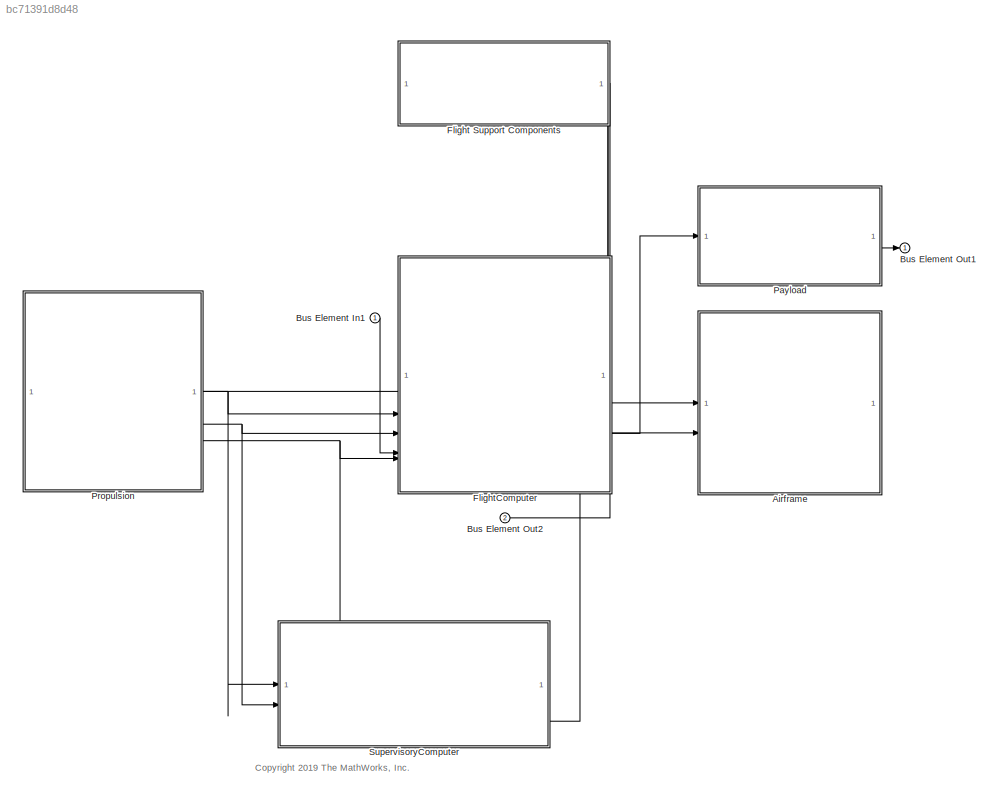
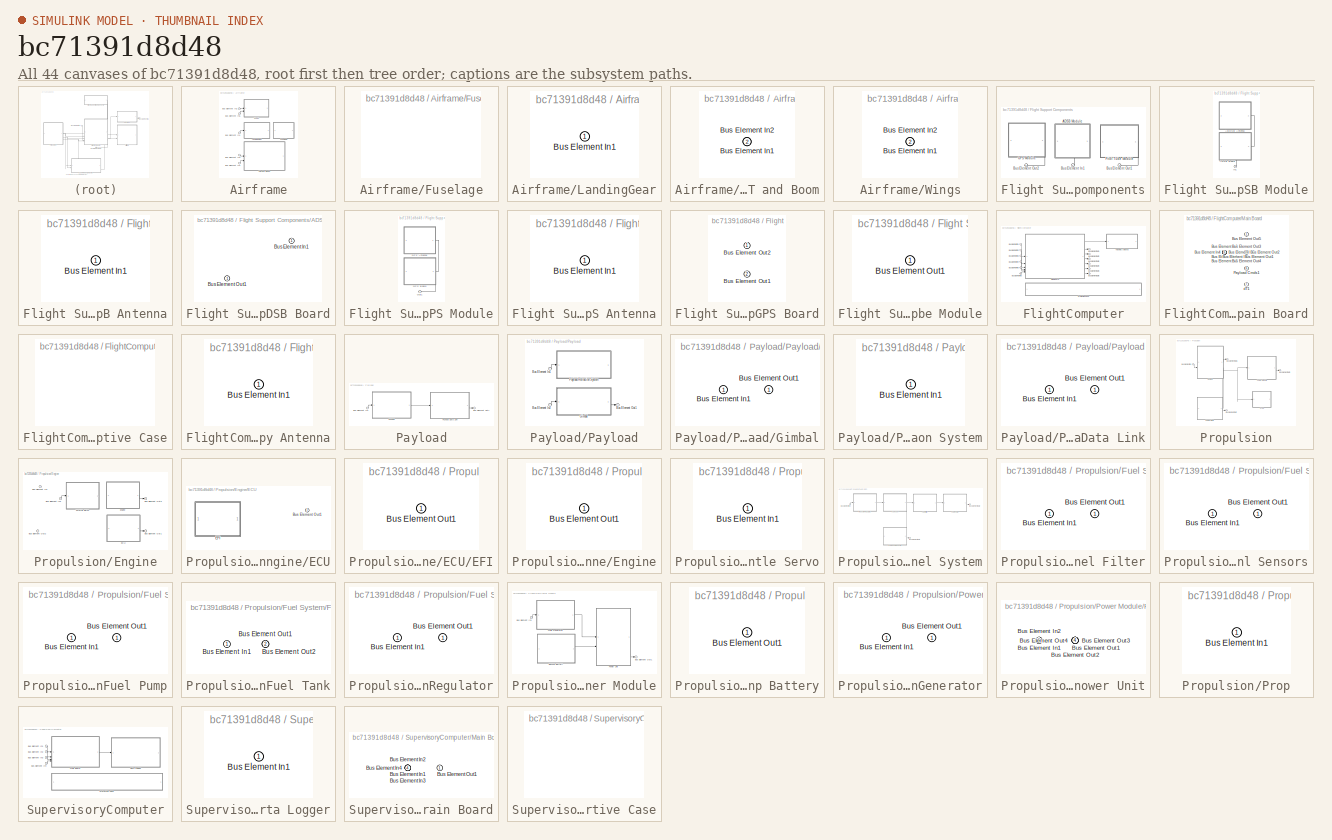
[diagram: thumbnail index - all 44 canvases of the model, root first then tree order]
MODEL slx_bc71391d8d48
KIND model
CONFIG AbsTol = auto
CONFIG EnableMultiTasking = off
CONFIG FixedStep = auto
CONFIG MaxStep = auto
CONFIG MinStep = auto
CONFIG RelTol = 1e-3
CONFIG SampleTimeConstraint = Unconstrained
CONFIG SolverName = VariableStepAuto
CONFIG StartTime = 0.0
CONFIG StopTime = 10.0
WORKSPACE source: mxarray member
WORKSPACE Var = 0
WORKSPACE architecture_gsCommands: Simulink.Bus (value not decoded)
WORKSPACE ctrlSrfcDeflection: Simulink.Bus (value not decoded)
WORKSPACE gs_commands_bus: Simulink.Bus (value not decoded)
WORKSPACE lightCmds: Simulink.Bus (value not decoded)
WORKSPACE mission_item_bus: Simulink.Bus (value not decoded)
WORKSPACE operatorCmds: Simulink.Bus (value not decoded)
WORKSPACE param_value_bus: Simulink.Bus (value not decoded)
BLOCK [SubSystem] Airframe
  PortSchema = {"entries":[{"content":{"headerSize":26,"margin":15,"minimumSpacing":25,"sides":[{"content":{"connectorIds":["In1","In2"]},"type":"ConnectorPlacement.EquallySpacedRectSide","uuid":"410c5b0f-08b5-48c1-aeab-ad32707f18cb"},{"content":{"connectorIds":[],"side":"RIGHT"},"type":"ConnectorPlacement.EquallySpacedRectSide","uuid":"175f376c-06cb-43d8-93cf-cfe74288c6ca"},{"content":{"connectorIds":[],"side":...<+295ch>  <repeated x3 — deduplicated; at blocks: Airframe, Tail and Boom, Wings>
BLOCK [Inport] Airframe/Bus Element In1
BLOCK [Inport] Airframe/Bus Element In2
  Port = 2
BLOCK [Inport] Airframe/Bus Element In3
  Port = 2
BLOCK [Inport] Airframe/Bus Element In4
BLOCK [Inport] Airframe/Bus Element In5
BLOCK [SubSystem] Airframe/Fuselage
  PortSchema = {"entries":[{"content":{"headerSize":26,"margin":15,"minimumSpacing":25,"sides":[{"content":{"connectorIds":[]},"type":"ConnectorPlacement.EquallySpacedRectSide","uuid":"1d3f3a23-636b-441d-85a6-b75e05b18389"},{"content":{"connectorIds":[],"side":"RIGHT"},"type":"ConnectorPlacement.EquallySpacedRectSide","uuid":"e22d7e46-f58c-4c9d-8892-998381cd60e3"},{"content":{"connectorIds":[],"side":"TOP"},"typ...<+284ch>  <repeated x3 — deduplicated; at blocks: Fuselage, Protective Case>
BLOCK [SubSystem] Airframe/LandingGear
  PortSchema = {"entries":[{"content":{"headerSize":26,"margin":15,"minimumSpacing":25,"sides":[{"content":{"connectorIds":["In1"]},"type":"ConnectorPlacement.EquallySpacedRectSide","uuid":"410c5b0f-08b5-48c1-aeab-ad32707f18cb"},{"content":{"connectorIds":[],"side":"RIGHT"},"type":"ConnectorPlacement.EquallySpacedRectSide","uuid":"175f376c-06cb-43d8-93cf-cfe74288c6ca"},{"content":{"connectorIds":[],"side":"TOP"}...<+289ch>  <repeated x5 — deduplicated; at blocks: LandingGear, Payload Retraction System, Throttle Servo, Prop, Data Logger>
BLOCK [Inport] Airframe/LandingGear/Bus Element In1
BLOCK [SubSystem] Airframe/Tail and Boom
BLOCK [Inport] Airframe/Tail and Boom/Bus Element In1
BLOCK [Inport] Airframe/Tail and Boom/Bus Element In2
  Port = 2
BLOCK [SubSystem] Airframe/Wings
BLOCK [Inport] Airframe/Wings/Bus Element In1
BLOCK [Inport] Airframe/Wings/Bus Element In2
  Port = 2
BLOCK [Inport] Bus Element In1
BLOCK [Outport] Bus Element Out1
  VectorParamsAs1DForOutWhenUnconnected = off
BLOCK [Outport] Bus Element Out2
  Port = 2
  VectorParamsAs1DForOutWhenUnconnected = off
BLOCK [SubSystem] Flight Support Components
  PortSchema = {"entries":[{"content":{"headerSize":26,"margin":15,"minimumSpacing":25,"sides":[{"content":{"connectorIds":[]},"type":"ConnectorPlacement.EquallySpacedRectSide","uuid":"410c5b0f-08b5-48c1-aeab-ad32707f18cb"},{"content":{"connectorIds":[],"side":"RIGHT"},"type":"ConnectorPlacement.EquallySpacedRectSide","uuid":"175f376c-06cb-43d8-93cf-cfe74288c6ca"},{"content":{"connectorIds":[],"side":"TOP"},"typ...<+447ch>
BLOCK [SubSystem] Flight Support Components/ADSB Module
  PortSchema = {"entries":[{"content":{"headerSize":26,"margin":15,"minimumSpacing":25,"sides":[{"content":{"connectorIds":[]},"type":"ConnectorPlacement.EquallySpacedRectSide","uuid":"d72055ff-278e-465f-ba3e-c6c3db7bfef8"},{"content":{"connectorIds":[],"side":"RIGHT"},"type":"ConnectorPlacement.EquallySpacedRectSide","uuid":"8524ed89-5b6f-4252-b4a0-99bfa4432df7"},{"content":{"connectorIds":[],"side":"TOP"},"typ...<+433ch>
BLOCK [SubSystem] Flight Support Components/ADSB Module/ABDSB Antenna
  PortSchema = {"entries":[{"content":{"headerSize":26,"margin":15,"minimumSpacing":25,"sides":[{"content":{"connectorIds":[]},"type":"ConnectorPlacement.EquallySpacedRectSide","uuid":"1d3f3a23-636b-441d-85a6-b75e05b18389"},{"content":{"connectorIds":["In1"],"side":"RIGHT"},"type":"ConnectorPlacement.EquallySpacedRectSide","uuid":"e22d7e46-f58c-4c9d-8892-998381cd60e3"},{"content":{"connectorIds":[],"side":"TOP"}...<+289ch>
BLOCK [Inport] Flight Support Components/ADSB Module/ABDSB Antenna/Bus Element In1
BLOCK [SubSystem] Flight Support Components/ADSB Module/ADSB Board
  PortSchema = {"entries":[{"content":{"headerSize":26,"margin":15,"minimumSpacing":25,"sides":[{"content":{"connectorIds":[]},"type":"ConnectorPlacement.EquallySpacedRectSide","uuid":"410c5b0f-08b5-48c1-aeab-ad32707f18cb"},{"content":{"connectorIds":["Out1"],"side":"RIGHT"},"type":"ConnectorPlacement.EquallySpacedRectSide","uuid":"175f376c-06cb-43d8-93cf-cfe74288c6ca"},{"content":{"connectorIds":[],"side":"TOP"...<+439ch>
BLOCK [Inport] Flight Support Components/ADSB Module/ADSB Board/Bus Element In1
BLOCK [Outport] Flight Support Components/ADSB Module/ADSB Board/Bus Element Out1
  VectorParamsAs1DForOutWhenUnconnected = off
BLOCK [Inport] Flight Support Components/ADSB Module/In1
BLOCK [Inport] Flight Support Components/Bus Element In1
BLOCK [Outport] Flight Support Components/Bus Element Out1
  VectorParamsAs1DForOutWhenUnconnected = off
BLOCK [Outport] Flight Support Components/Bus Element Out2
  Port = 2
  VectorParamsAs1DForOutWhenUnconnected = off
BLOCK [SubSystem] Flight Support Components/GPS Module
  PortSchema = {"entries":[{"content":{"headerSize":26,"margin":15,"minimumSpacing":25,"sides":[{"content":{"connectorIds":[]},"type":"ConnectorPlacement.EquallySpacedRectSide","uuid":"9f35dc00-989c-4612-aee9-27ffd041f5d2"},{"content":{"connectorIds":[],"side":"RIGHT"},"type":"ConnectorPlacement.EquallySpacedRectSide","uuid":"fc636a36-c80d-4d26-be49-cb148246bb8f"},{"content":{"connectorIds":[],"side":"TOP"},"typ...<+434ch>
BLOCK [SubSystem] Flight Support Components/GPS Module/GPS Antenna
  PortSchema = {"entries":[{"content":{"headerSize":26,"margin":15,"minimumSpacing":25,"sides":[{"content":{"connectorIds":[]},"type":"ConnectorPlacement.EquallySpacedRectSide","uuid":"1d3f3a23-636b-441d-85a6-b75e05b18389"},{"content":{"connectorIds":["In1"],"side":"RIGHT"},"type":"ConnectorPlacement.EquallySpacedRectSide","uuid":"e22d7e46-f58c-4c9d-8892-998381cd60e3"},{"content":{"connectorIds":[],"side":"TOP"}...<+289ch>
BLOCK [Inport] Flight Support Components/GPS Module/GPS Antenna/Bus Element In1
BLOCK [SubSystem] Flight Support Components/GPS Module/GPS Board
  PortSchema = {"entries":[{"content":{"headerSize":26,"margin":15,"minimumSpacing":25,"sides":[{"content":{"connectorIds":[]},"type":"ConnectorPlacement.EquallySpacedRectSide","uuid":"288187f8-f80a-4535-8eff-6998f4e932c0"},{"content":{"connectorIds":["Out1"],"side":"RIGHT"},"type":"ConnectorPlacement.EquallySpacedRectSide","uuid":"d1e22774-cdd2-4e71-94b1-3e938d9d16f6"},{"content":{"connectorIds":[],"side":"TOP"...<+440ch>
BLOCK [Outport] Flight Support Components/GPS Module/GPS Board/Bus Element Out1
  Port = 2
  VectorParamsAs1DForOutWhenUnconnected = off
BLOCK [Outport] Flight Support Components/GPS Module/GPS Board/Bus Element Out2
  VectorParamsAs1DForOutWhenUnconnected = off
BLOCK [Outport] Flight Support Components/GPS Module/Out1
  VectorParamsAs1DForOutWhenUnconnected = off
BLOCK [SubSystem] Flight Support Components/Pitot Tube Module
  PortSchema = {"entries":[{"content":{"headerSize":26,"margin":15,"minimumSpacing":25,"sides":[{"content":{"connectorIds":[]},"type":"ConnectorPlacement.EquallySpacedRectSide","uuid":"288187f8-f80a-4535-8eff-6998f4e932c0"},{"content":{"connectorIds":[],"side":"RIGHT"},"type":"ConnectorPlacement.EquallySpacedRectSide","uuid":"d1e22774-cdd2-4e71-94b1-3e938d9d16f6"},{"content":{"connectorIds":[],"side":"TOP"},"typ...<+434ch>
BLOCK [Outport] Flight Support Components/Pitot Tube Module/Bus Element Out1
  VectorParamsAs1DForOutWhenUnconnected = off
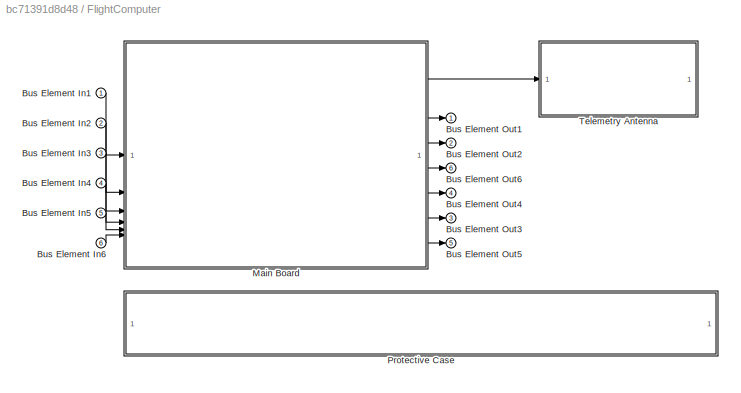
BLOCK [SubSystem] FlightComputer
  PortSchema = {"entries":[{"content":{"headerSize":26,"margin":15,"minimumSpacing":25,"sides":[{"content":{"connectorIds":["In5","Out5","In2","In3","In6"]},"type":"ConnectorPlacement.EquallySpacedRectSide","uuid":"288187f8-f80a-4535-8eff-6998f4e932c0"},{"content":{"connectorIds":["Out3","Out2","Out6"],"side":"RIGHT"},"type":"ConnectorPlacement.EquallySpacedRectSide","uuid":"d1e22774-cdd2-4e71-94b1-3e938d9d16f6"...<+502ch>
BLOCK [Inport] FlightComputer/Bus Element In1
BLOCK [Inport] FlightComputer/Bus Element In2
  Port = 2
BLOCK [Inport] FlightComputer/Bus Element In3
  Port = 3
BLOCK [Inport] FlightComputer/Bus Element In4
  Port = 4
BLOCK [Inport] FlightComputer/Bus Element In5
  Port = 5
BLOCK [Inport] FlightComputer/Bus Element In6
  Port = 6
BLOCK [Outport] FlightComputer/Bus Element Out1
  VectorParamsAs1DForOutWhenUnconnected = off
BLOCK [Outport] FlightComputer/Bus Element Out2
  Port = 2
  VectorParamsAs1DForOutWhenUnconnected = off
BLOCK [Outport] FlightComputer/Bus Element Out3
  Port = 3
  VectorParamsAs1DForOutWhenUnconnected = off
BLOCK [Outport] FlightComputer/Bus Element Out4
  Port = 4
  VectorParamsAs1DForOutWhenUnconnected = off
BLOCK [Outport] FlightComputer/Bus Element Out5
  Port = 5
  VectorParamsAs1DForOutWhenUnconnected = off
BLOCK [Outport] FlightComputer/Bus Element Out6
  Port = 6
  VectorParamsAs1DForOutWhenUnconnected = off
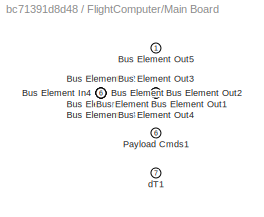
BLOCK [SubSystem] FlightComputer/Main Board
  PortSchema = {"entries":[{"content":{"headerSize":26,"margin":15,"minimumSpacing":25,"sides":[{"content":{"connectorIds":["In1","In2","In3","In4","In5","In6"]},"type":"ConnectorPlacement.EquallySpacedRectSide","uuid":"288187f8-f80a-4535-8eff-6998f4e932c0"},{"content":{"connectorIds":["Out1","Out2","Out3","Out4","Out5","Out6","Out7"],"side":"RIGHT"},"type":"ConnectorPlacement.EquallySpacedRectSide","uuid":"d1e2...<+367ch>
BLOCK [Inport] FlightComputer/Main Board/Bus Element In1
BLOCK [Inport] FlightComputer/Main Board/Bus Element In2
  Port = 2
BLOCK [Inport] FlightComputer/Main Board/Bus Element In3
  Port = 3
BLOCK [Inport] FlightComputer/Main Board/Bus Element In4
  Port = 4
BLOCK [Inport] FlightComputer/Main Board/Bus Element In5
  Port = 5
BLOCK [Inport] FlightComputer/Main Board/Bus Element In6
  Port = 6
BLOCK [Outport] FlightComputer/Main Board/Bus Element Out1
  Port = 2
  VectorParamsAs1DForOutWhenUnconnected = off
BLOCK [Outport] FlightComputer/Main Board/Bus Element Out2
  Port = 3
  VectorParamsAs1DForOutWhenUnconnected = off
BLOCK [Outport] FlightComputer/Main Board/Bus Element Out3
  Port = 4
  VectorParamsAs1DForOutWhenUnconnected = off
BLOCK [Outport] FlightComputer/Main Board/Bus Element Out4
  Port = 5
  VectorParamsAs1DForOutWhenUnconnected = off
BLOCK [Outport] FlightComputer/Main Board/Bus Element Out5
  VectorParamsAs1DForOutWhenUnconnected = off
BLOCK [Outport] FlightComputer/Main Board/Payload Cmds1
  Port = 6
  VectorParamsAs1DForOutWhenUnconnected = off
BLOCK [Outport] FlightComputer/Main Board/dT1
  Port = 7
  VectorParamsAs1DForOutWhenUnconnected = off
BLOCK [SubSystem] FlightComputer/Protective Case
BLOCK [SubSystem] FlightComputer/Telemetry Antenna
  PortSchema = {"entries":[{"content":{"headerSize":26,"margin":15,"minimumSpacing":25,"sides":[{"content":{"connectorIds":["In1"]},"type":"ConnectorPlacement.EquallySpacedRectSide","uuid":"1d3f3a23-636b-441d-85a6-b75e05b18389"},{"content":{"connectorIds":[],"side":"RIGHT"},"type":"ConnectorPlacement.EquallySpacedRectSide","uuid":"e22d7e46-f58c-4c9d-8892-998381cd60e3"},{"content":{"connectorIds":[],"side":"TOP"}...<+289ch>
BLOCK [Inport] FlightComputer/Telemetry Antenna/Bus Element In1
BLOCK [SubSystem] Payload
  PortSchema = {"entries":[{"content":{"headerSize":26,"margin":15,"minimumSpacing":25,"sides":[{"content":{"connectorIds":["In1"]},"type":"ConnectorPlacement.EquallySpacedRectSide","uuid":"288187f8-f80a-4535-8eff-6998f4e932c0"},{"content":{"connectorIds":["Out1"],"side":"RIGHT"},"type":"ConnectorPlacement.EquallySpacedRectSide","uuid":"d1e22774-cdd2-4e71-94b1-3e938d9d16f6"},{"content":{"connectorIds":[],"side":...<+295ch>  <repeated x6 — deduplicated; at blocks: Payload, Payload Data Link, Fuel Pump, Pressure Regulator, Main Generator>
BLOCK [Inport] Payload/Bus Element In1
BLOCK [Outport] Payload/Bus Element Out1
  VectorParamsAs1DForOutWhenUnconnected = off
BLOCK [SubSystem] Payload/Payload
BLOCK [SubSystem] Payload/Payload Data Link
BLOCK [Inport] Payload/Payload Data Link/Bus Element In1
BLOCK [Outport] Payload/Payload Data Link/Bus Element Out1
  VectorParamsAs1DForOutWhenUnconnected = off
BLOCK [Inport] Payload/Payload/Bus Element In1
BLOCK [Inport] Payload/Payload/Bus Element In2
BLOCK [Outport] Payload/Payload/Bus Element Out1
  VectorParamsAs1DForOutWhenUnconnected = off
BLOCK [SubSystem] Payload/Payload/Gimbal
  PortSchema = {"entries":[{"content":{"headerSize":26,"margin":15,"minimumSpacing":25,"sides":[{"content":{"connectorIds":["In1"]},"type":"ConnectorPlacement.EquallySpacedRectSide","uuid":"410c5b0f-08b5-48c1-aeab-ad32707f18cb"},{"content":{"connectorIds":["Out1"],"side":"RIGHT"},"type":"ConnectorPlacement.EquallySpacedRectSide","uuid":"175f376c-06cb-43d8-93cf-cfe74288c6ca"},{"content":{"connectorIds":[],"side":...<+295ch>  <repeated x3 — deduplicated; at blocks: Gimbal, Fuel Filter, Power Module>
BLOCK [Inport] Payload/Payload/Gimbal/Bus Element In1
BLOCK [Outport] Payload/Payload/Gimbal/Bus Element Out1
  VectorParamsAs1DForOutWhenUnconnected = off
BLOCK [SubSystem] Payload/Payload/Payload Retraction System
BLOCK [Inport] Payload/Payload/Payload Retraction System/Bus Element In1
BLOCK [SubSystem] Propulsion
  PortSchema = {"entries":[{"content":{"headerSize":26,"margin":15,"minimumSpacing":25,"sides":[{"content":{"connectorIds":[]},"type":"ConnectorPlacement.EquallySpacedRectSide","uuid":"288187f8-f80a-4535-8eff-6998f4e932c0"},{"content":{"connectorIds":["In1","Out1","Out2","Out3"],"side":"RIGHT"},"type":"ConnectorPlacement.EquallySpacedRectSide","uuid":"d1e22774-cdd2-4e71-94b1-3e938d9d16f6"},{"content":{"connector...<+310ch>
BLOCK [Inport] Propulsion/Bus Element In1
BLOCK [Outport] Propulsion/Bus Element Out1
  VectorParamsAs1DForOutWhenUnconnected = off
BLOCK [Outport] Propulsion/Bus Element Out2
  Port = 2
  VectorParamsAs1DForOutWhenUnconnected = off
BLOCK [Outport] Propulsion/Bus Element Out3
  Port = 3
  VectorParamsAs1DForOutWhenUnconnected = off
BLOCK [SubSystem] Propulsion/Engine
  PortSchema = {"entries":[{"content":{"headerSize":26,"margin":15,"minimumSpacing":25,"sides":[{"content":{"connectorIds":["In2"]},"type":"ConnectorPlacement.EquallySpacedRectSide","uuid":"288187f8-f80a-4535-8eff-6998f4e932c0"},{"content":{"connectorIds":["Out1","Out3"],"side":"RIGHT"},"type":"ConnectorPlacement.EquallySpacedRectSide","uuid":"d1e22774-cdd2-4e71-94b1-3e938d9d16f6"},{"content":{"connectorIds":[],...<+458ch>
BLOCK [Inport] Propulsion/Engine/Bus Element In1
BLOCK [Inport] Propulsion/Engine/Bus Element In2
  Port = 2
BLOCK [Outport] Propulsion/Engine/Bus Element Out1
  VectorParamsAs1DForOutWhenUnconnected = off
BLOCK [Outport] Propulsion/Engine/Bus Element Out2
  Port = 2
  VectorParamsAs1DForOutWhenUnconnected = off
BLOCK [Outport] Propulsion/Engine/Bus Element Out3
  Port = 3
  VectorParamsAs1DForOutWhenUnconnected = off
BLOCK [SubSystem] Propulsion/Engine/ECU
  PortSchema = {"entries":[{"content":{"headerSize":26,"margin":15,"minimumSpacing":25,"sides":[{"content":{"connectorIds":[]},"type":"ConnectorPlacement.EquallySpacedRectSide","uuid":"288187f8-f80a-4535-8eff-6998f4e932c0"},{"content":{"connectorIds":["Out1"],"side":"RIGHT"},"type":"ConnectorPlacement.EquallySpacedRectSide","uuid":"d1e22774-cdd2-4e71-94b1-3e938d9d16f6"},{"content":{"connectorIds":[],"side":"TOP"...<+290ch>  <repeated x4 — deduplicated; at blocks: ECU, EFI, Engine, Backup Battery>
BLOCK [Outport] Propulsion/Engine/ECU/Bus Element Out1
  VectorParamsAs1DForOutWhenUnconnected = off
BLOCK [SubSystem] Propulsion/Engine/ECU/EFI
BLOCK [Outport] Propulsion/Engine/ECU/EFI/Bus Element Out1
  VectorParamsAs1DForOutWhenUnconnected = off
BLOCK [SubSystem] Propulsion/Engine/Engine
BLOCK [Outport] Propulsion/Engine/Engine/Bus Element Out1
  VectorParamsAs1DForOutWhenUnconnected = off
BLOCK [SubSystem] Propulsion/Engine/Throttle Servo
BLOCK [Inport] Propulsion/Engine/Throttle Servo/Bus Element In1
BLOCK [SubSystem] Propulsion/Fuel System
  PortSchema = {"entries":[{"content":{"headerSize":26,"margin":15,"minimumSpacing":25,"sides":[{"content":{"connectorIds":[]},"type":"ConnectorPlacement.EquallySpacedRectSide","uuid":"288187f8-f80a-4535-8eff-6998f4e932c0"},{"content":{"connectorIds":["Out1"],"side":"RIGHT"},"type":"ConnectorPlacement.EquallySpacedRectSide","uuid":"d1e22774-cdd2-4e71-94b1-3e938d9d16f6"},{"content":{"connectorIds":["In1","Out2"],...<+302ch>
BLOCK [Inport] Propulsion/Fuel System/Bus Element In1
BLOCK [Outport] Propulsion/Fuel System/Bus Element Out1
  VectorParamsAs1DForOutWhenUnconnected = off
BLOCK [Outport] Propulsion/Fuel System/Bus Element Out2
  Port = 2
  VectorParamsAs1DForOutWhenUnconnected = off
BLOCK [SubSystem] Propulsion/Fuel System/Fuel Filter
BLOCK [Inport] Propulsion/Fuel System/Fuel Filter/Bus Element In1
BLOCK [Outport] Propulsion/Fuel System/Fuel Filter/Bus Element Out1
  VectorParamsAs1DForOutWhenUnconnected = off
BLOCK [SubSystem] Propulsion/Fuel System/Fuel Level Sensors
  PortSchema = {"entries":[{"content":{"headerSize":26,"margin":15,"minimumSpacing":25,"sides":[{"content":{"connectorIds":[]},"type":"ConnectorPlacement.EquallySpacedRectSide","uuid":"410c5b0f-08b5-48c1-aeab-ad32707f18cb"},{"content":{"connectorIds":["Out1"],"side":"RIGHT"},"type":"ConnectorPlacement.EquallySpacedRectSide","uuid":"175f376c-06cb-43d8-93cf-cfe74288c6ca"},{"content":{"connectorIds":["In1"],"side":...<+295ch>
BLOCK [Inport] Propulsion/Fuel System/Fuel Level Sensors/Bus Element In1
BLOCK [Outport] Propulsion/Fuel System/Fuel Level Sensors/Bus Element Out1
  VectorParamsAs1DForOutWhenUnconnected = off
BLOCK [SubSystem] Propulsion/Fuel System/Fuel Pump
BLOCK [Inport] Propulsion/Fuel System/Fuel Pump/Bus Element In1
BLOCK [Outport] Propulsion/Fuel System/Fuel Pump/Bus Element Out1
  VectorParamsAs1DForOutWhenUnconnected = off
BLOCK [SubSystem] Propulsion/Fuel System/Fuel Tank
  PortSchema = {"entries":[{"content":{"headerSize":26,"margin":15,"minimumSpacing":25,"sides":[{"content":{"connectorIds":["In1"]},"type":"ConnectorPlacement.EquallySpacedRectSide","uuid":"288187f8-f80a-4535-8eff-6998f4e932c0"},{"content":{"connectorIds":["Out1"],"side":"RIGHT"},"type":"ConnectorPlacement.EquallySpacedRectSide","uuid":"d1e22774-cdd2-4e71-94b1-3e938d9d16f6"},{"content":{"connectorIds":[],"side":...<+445ch>
BLOCK [Inport] Propulsion/Fuel System/Fuel Tank/Bus Element In1
BLOCK [Outport] Propulsion/Fuel System/Fuel Tank/Bus Element Out1
  VectorParamsAs1DForOutWhenUnconnected = off
BLOCK [Outport] Propulsion/Fuel System/Fuel Tank/Bus Element Out2
  Port = 2
  VectorParamsAs1DForOutWhenUnconnected = off
BLOCK [SubSystem] Propulsion/Fuel System/Pressure Regulator
BLOCK [Inport] Propulsion/Fuel System/Pressure Regulator/Bus Element In1
BLOCK [Outport] Propulsion/Fuel System/Pressure Regulator/Bus Element Out1
  VectorParamsAs1DForOutWhenUnconnected = off
BLOCK [SubSystem] Propulsion/Power Module
BLOCK [SubSystem] Propulsion/Power Module/Backup Battery
BLOCK [Outport] Propulsion/Power Module/Backup Battery/Bus Element Out1
  VectorParamsAs1DForOutWhenUnconnected = off
BLOCK [Inport] Propulsion/Power Module/Bus Element In1
BLOCK [Outport] Propulsion/Power Module/Bus Element Out1
  VectorParamsAs1DForOutWhenUnconnected = off
BLOCK [SubSystem] Propulsion/Power Module/Main Generator
BLOCK [Inport] Propulsion/Power Module/Main Generator/Bus Element In1
BLOCK [Outport] Propulsion/Power Module/Main Generator/Bus Element Out1
  VectorParamsAs1DForOutWhenUnconnected = off
BLOCK [SubSystem] Propulsion/Power Module/Power Unit
  PortSchema = {"entries":[{"content":{"headerSize":26,"margin":15,"minimumSpacing":25,"sides":[{"content":{"connectorIds":["In1","In2"]},"type":"ConnectorPlacement.EquallySpacedRectSide","uuid":"288187f8-f80a-4535-8eff-6998f4e932c0"},{"content":{"connectorIds":["Out1","Out2","Out3","Out4"],"side":"RIGHT"},"type":"ConnectorPlacement.EquallySpacedRectSide","uuid":"d1e22774-cdd2-4e71-94b1-3e938d9d16f6"},{"content"...<+322ch>
BLOCK [Inport] Propulsion/Power Module/Power Unit/Bus Element In1
BLOCK [Inport] Propulsion/Power Module/Power Unit/Bus Element In2
  Port = 2
BLOCK [Outport] Propulsion/Power Module/Power Unit/Bus Element Out1
  VectorParamsAs1DForOutWhenUnconnected = off
BLOCK [Outport] Propulsion/Power Module/Power Unit/Bus Element Out2
  Port = 2
  VectorParamsAs1DForOutWhenUnconnected = off
BLOCK [Outport] Propulsion/Power Module/Power Unit/Bus Element Out3
  Port = 3
  VectorParamsAs1DForOutWhenUnconnected = off
BLOCK [Outport] Propulsion/Power Module/Power Unit/Bus Element Out4
  Port = 4
  VectorParamsAs1DForOutWhenUnconnected = off
BLOCK [SubSystem] Propulsion/Prop
BLOCK [Inport] Propulsion/Prop/Bus Element In1
BLOCK [SubSystem] SupervisoryComputer
  PortSchema = {"entries":[{"content":{"headerSize":26,"margin":15,"minimumSpacing":25,"sides":[{"content":{"connectorIds":["In2","In1"]},"type":"ConnectorPlacement.EquallySpacedRectSide","uuid":"410c5b0f-08b5-48c1-aeab-ad32707f18cb"},{"content":{"connectorIds":[],"side":"RIGHT"},"type":"ConnectorPlacement.EquallySpacedRectSide","uuid":"175f376c-06cb-43d8-93cf-cfe74288c6ca"},{"content":{"connectorIds":["In3","In...<+306ch>
BLOCK [Inport] SupervisoryComputer/Bus Element In1
BLOCK [Inport] SupervisoryComputer/Bus Element In2
  Port = 2
BLOCK [Inport] SupervisoryComputer/Bus Element In3
  Port = 3
BLOCK [Inport] SupervisoryComputer/Bus Element In4
  Port = 4
BLOCK [SubSystem] SupervisoryComputer/Data Logger
BLOCK [Inport] SupervisoryComputer/Data Logger/Bus Element In1
BLOCK [SubSystem] SupervisoryComputer/Main Board
  PortSchema = {"entries":[{"content":{"headerSize":26,"margin":15,"minimumSpacing":25,"sides":[{"content":{"connectorIds":["In1","In2","In3","In4"]},"type":"ConnectorPlacement.EquallySpacedRectSide","uuid":"410c5b0f-08b5-48c1-aeab-ad32707f18cb"},{"content":{"connectorIds":["Out1"],"side":"RIGHT"},"type":"ConnectorPlacement.EquallySpacedRectSide","uuid":"175f376c-06cb-43d8-93cf-cfe74288c6ca"},{"content":{"connec...<+313ch>
BLOCK [Inport] SupervisoryComputer/Main Board/Bus Element In1
BLOCK [Inport] SupervisoryComputer/Main Board/Bus Element In2
  Port = 2
BLOCK [Inport] SupervisoryComputer/Main Board/Bus Element In3
  Port = 3
BLOCK [Inport] SupervisoryComputer/Main Board/Bus Element In4
  Port = 4
BLOCK [Outport] SupervisoryComputer/Main Board/Bus Element Out1
  VectorParamsAs1DForOutWhenUnconnected = off
BLOCK [SubSystem] SupervisoryComputer/Protective Case
ANNOTATION (root): <copyright redacted>
LINE Airframe/Bus Element In1:1 -> Airframe/LandingGear:1
LINE Airframe/Bus Element In2:1 -> Airframe/Wings:1
LINE Airframe/Bus Element In3:1 -> Airframe/Tail and Boom:1
LINE Airframe/Bus Element In4:1 -> Airframe/Tail and Boom:2
LINE Airframe/Bus Element In5:1 -> Airframe/Wings:2
LINE Bus Element In1:1 -> FlightComputer:5
LINE Flight Support Components/ADSB Module/ADSB Board:1 -> Flight Support Components/ADSB Module/ABDSB Antenna:1
LINE Flight Support Components/ADSB Module/In1:1 -> Flight Support Components/ADSB Module/ADSB Board:1
LINE Flight Support Components/Bus Element In1:1 -> Flight Support Components/ADSB Module:1
LINE Flight Support Components/GPS Module/GPS Board:1 -> Flight Support Components/GPS Module/GPS Antenna:1
LINE Flight Support Components/GPS Module/GPS Board:2 -> Flight Support Components/GPS Module/Out1:1
LINE Flight Support Components/GPS Module:1 -> Flight Support Components/Bus Element Out2:1
LINE Flight Support Components/Pitot Tube Module:1 -> Flight Support Components/Bus Element Out1:1
LINE Flight Support Components:1 -> FlightComputer:1
LINE Flight Support Components:2 -> FlightComputer:4
LINE FlightComputer/Bus Element In1:1 -> FlightComputer/Main Board:1
LINE FlightComputer/Bus Element In2:1 -> FlightComputer/Main Board:2
LINE FlightComputer/Bus Element In3:1 -> FlightComputer/Main Board:3
LINE FlightComputer/Bus Element In4:1 -> FlightComputer/Main Board:4
LINE FlightComputer/Bus Element In5:1 -> FlightComputer/Main Board:5
LINE FlightComputer/Bus Element In6:1 -> FlightComputer/Main Board:6
LINE FlightComputer/Main Board:1 -> FlightComputer/Telemetry Antenna:1
LINE FlightComputer/Main Board:2 -> FlightComputer/Bus Element Out1:1
LINE FlightComputer/Main Board:3 -> FlightComputer/Bus Element Out2:1
LINE FlightComputer/Main Board:4 -> FlightComputer/Bus Element Out6:1
LINE FlightComputer/Main Board:5 -> FlightComputer/Bus Element Out4:1
LINE FlightComputer/Main Board:6 -> FlightComputer/Bus Element Out3:1
LINE FlightComputer/Main Board:7 -> FlightComputer/Bus Element Out5:1
LINE FlightComputer:1 -> Flight Support Components:1
LINE FlightComputer:2 -> Airframe:1
LINE FlightComputer:3 -> Payload:1
NET FlightComputer:4 -> Bus Element Out2:1, SupervisoryComputer:4
LINE FlightComputer:5 -> Propulsion:1
LINE FlightComputer:6 -> Airframe:2
LINE Payload/Bus Element In1:1 -> Payload/Payload:1
LINE Payload/Payload Data Link:1 -> Payload/Bus Element Out1:1
LINE Payload/Payload/Bus Element In1:1 -> Payload/Payload/Payload Retraction System:1
LINE Payload/Payload/Bus Element In2:1 -> Payload/Payload/Gimbal:1
LINE Payload/Payload/Gimbal:1 -> Payload/Payload/Bus Element Out1:1
LINE Payload/Payload:1 -> Payload/Payload Data Link:1
LINE Payload:1 -> Bus Element Out1:1
LINE Propulsion/Bus Element In1:1 -> Propulsion/Engine:2
LINE Propulsion/Engine/Bus Element In2:1 -> Propulsion/Engine/Throttle Servo:1
LINE Propulsion/Engine/ECU:1 -> Propulsion/Engine/Bus Element Out1:1
LINE Propulsion/Engine/Engine:1 -> Propulsion/Engine/Bus Element Out3:1
LINE Propulsion/Engine:1 -> Propulsion/Bus Element Out1:1
LINE Propulsion/Engine:2 -> Propulsion/Fuel System:1
NET Propulsion/Engine:3 -> Propulsion/Power Module:1, Propulsion/Prop:1
LINE Propulsion/Fuel System/Bus Element In1:1 -> Propulsion/Fuel System/Pressure Regulator:1
LINE Propulsion/Fuel System/Fuel Filter:1 -> Propulsion/Fuel System/Fuel Pump:1
LINE Propulsion/Fuel System/Fuel Level Sensors:1 -> Propulsion/Fuel System/Bus Element Out1:1
LINE Propulsion/Fuel System/Fuel Pump:1 -> Propulsion/Fuel System/Bus Element Out2:1
LINE Propulsion/Fuel System/Fuel Tank:1 -> Propulsion/Fuel System/Fuel Filter:1
LINE Propulsion/Fuel System/Fuel Tank:2 -> Propulsion/Fuel System/Fuel Level Sensors:1
LINE Propulsion/Fuel System/Pressure Regulator:1 -> Propulsion/Fuel System/Fuel Tank:1
LINE Propulsion/Fuel System:1 -> Propulsion/Bus Element Out2:1
LINE Propulsion/Fuel System:2 -> Propulsion/Engine:1
LINE Propulsion/Power Module/Backup Battery:1 -> Propulsion/Power Module/Power Unit:2
LINE Propulsion/Power Module/Bus Element In1:1 -> Propulsion/Power Module/Main Generator:1
LINE Propulsion/Power Module/Main Generator:1 -> Propulsion/Power Module/Power Unit:1
LINE Propulsion/Power Module/Power Unit:4 -> Propulsion/Power Module/Bus Element Out1:1
LINE Propulsion/Power Module:1 -> Propulsion/Bus Element Out3:1
NET Propulsion:1 -> FlightComputer:2, SupervisoryComputer:1
NET Propulsion:2 -> FlightComputer:3, SupervisoryComputer:2
NET Propulsion:3 -> FlightComputer:6, SupervisoryComputer:3
LINE SupervisoryComputer/Bus Element In1:1 -> SupervisoryComputer/Main Board:1
LINE SupervisoryComputer/Bus Element In2:1 -> SupervisoryComputer/Main Board:2
LINE SupervisoryComputer/Bus Element In3:1 -> SupervisoryComputer/Main Board:3
LINE SupervisoryComputer/Bus Element In4:1 -> SupervisoryComputer/Main Board:4
LINE SupervisoryComputer/Main Board:1 -> SupervisoryComputer/Data Logger:1
note: NET lines group one-source signal fan-out (src -> all destinations, sorted); 1:1 wires keep LINE
